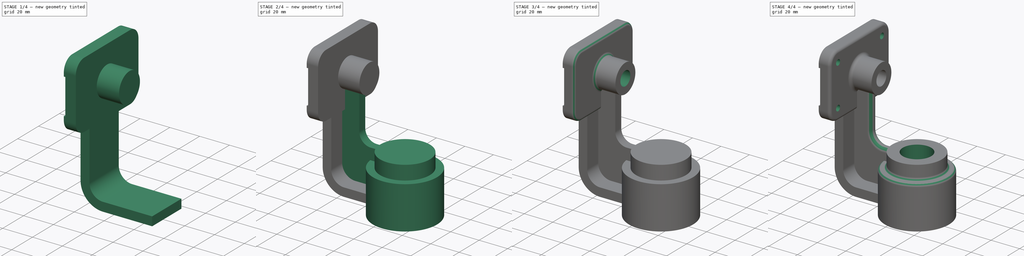
[diagram: build sequence overview — one tinted view per stage of 4, left to right]
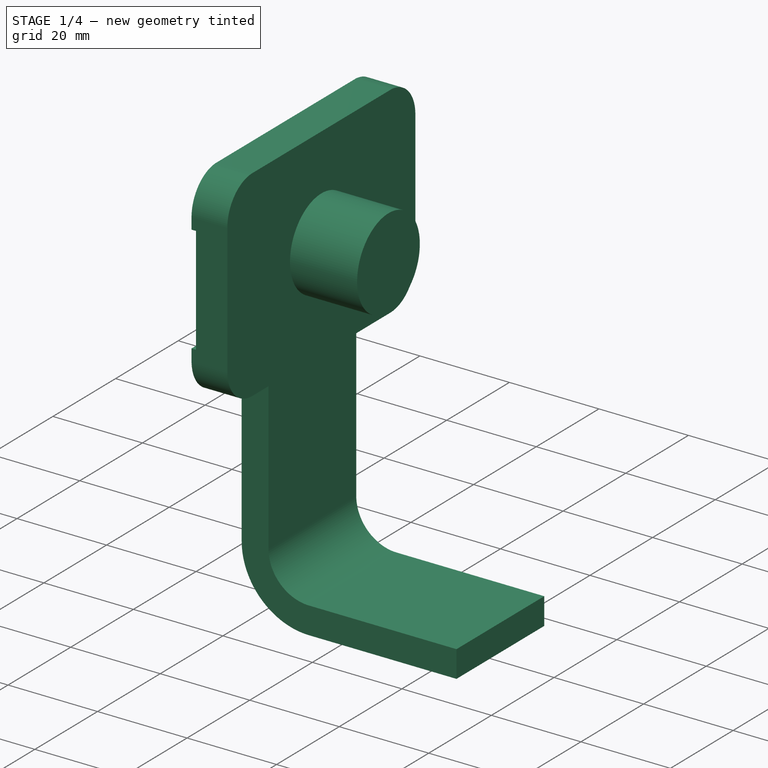
[diagram: stage 1 of 4 — iso view after this stage's code; geometry added in this stage tinted green]
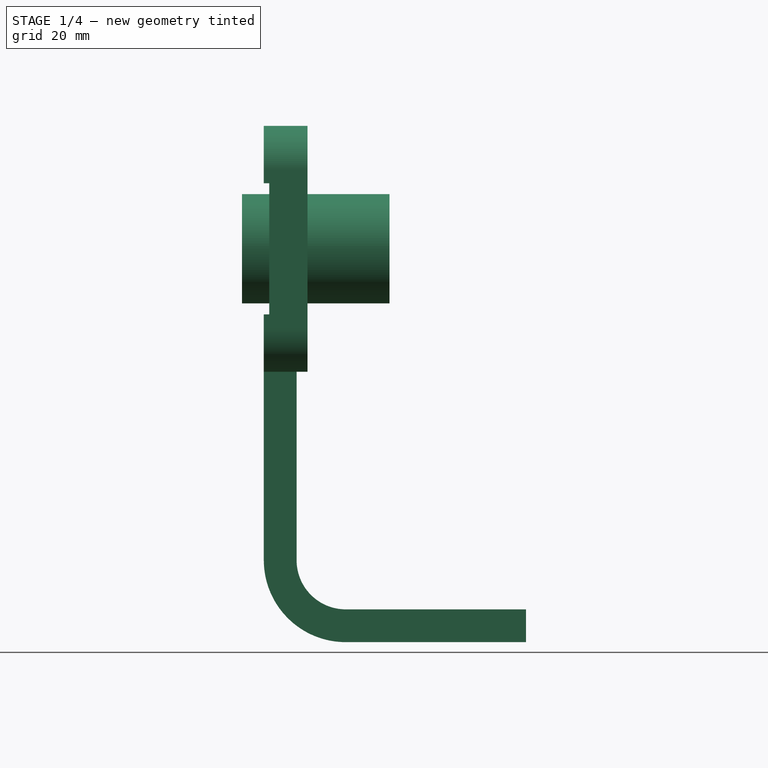
[diagram: stage 1 of 4 — front view after this stage's code; geometry added in this stage tinted green]
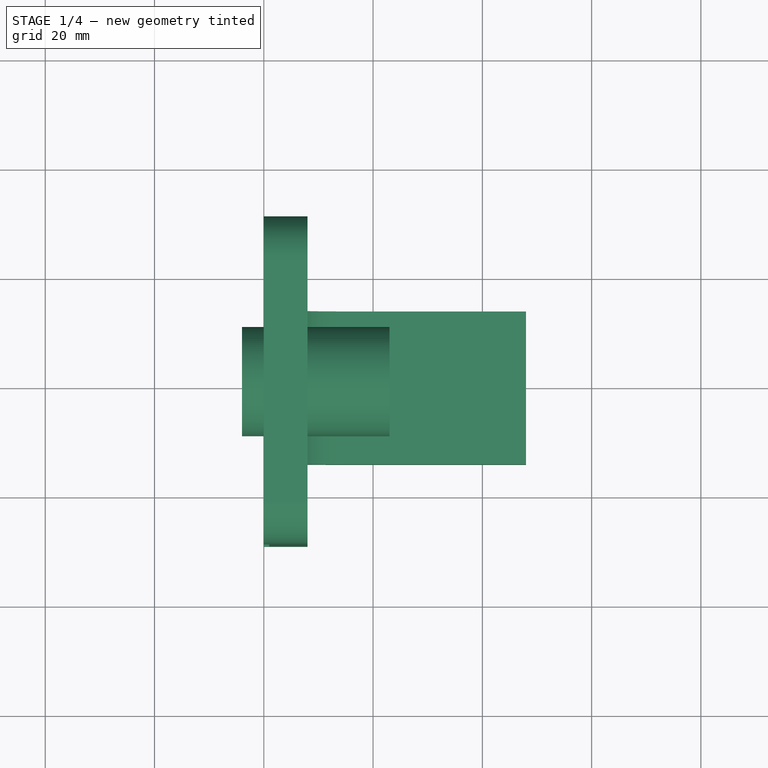
[diagram: stage 1 of 4 — top view after this stage's code; geometry added in this stage tinted green]
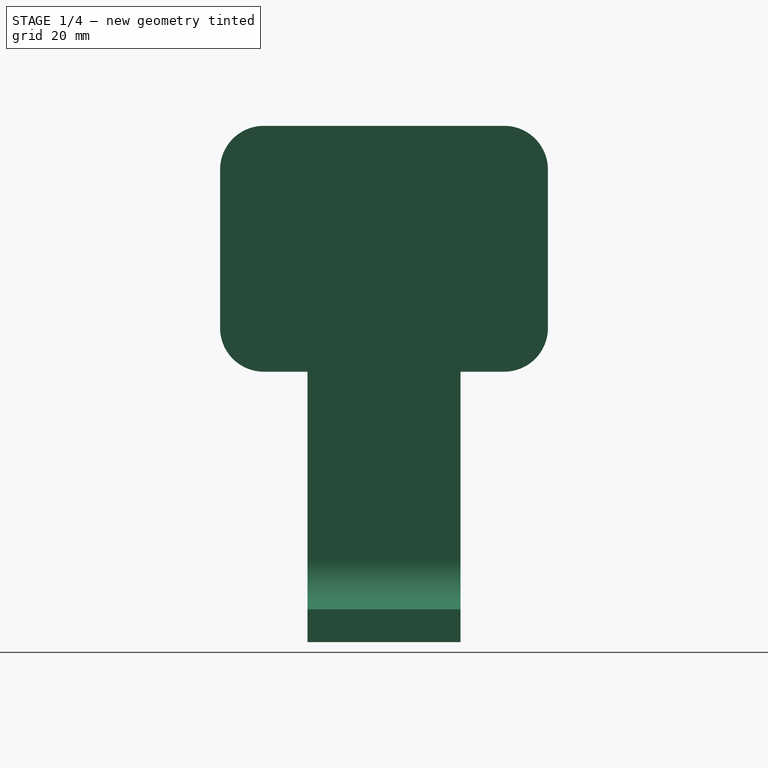
[diagram: stage 1 of 4 — right view after this stage's code; geometry added in this stage tinted green]
FCSTD DOCUMENT  (FreeCAD 0.21R33771 (Git))
Label: ex46
License: All rights reserved
LicenseURL: https://en.wikipedia.org/wiki/All_rights_reserved
objects: Sketcher::SketchObject×9, PartDesign::Fillet×5, PartDesign::Pad×4, PartDesign::Pocket×3, PartDesign::Revolution×1, PartDesign::Groove×1, PartDesign::Body×1
note: 38 computed .brp shape members not serialized (recipe doc carries the construction recipe); baked Part::Feature solids carry a one-line shape summary decoded from their .brp

FEATURE [Sketcher::SketchObject] Sketch
  FullyConstrained = true
  MapMode = 5
  Placement = pos=(0,0,0) rot=(0.57735,0.57735,0.57735;2.0944rad)
  Support = -> [YZ_Plane]
  sketch-geometry (10):
    g0: ArcOfCircle CenterX=-22 CenterY=14.5 CenterZ=0 NormalX=0 NormalY=0 NormalZ=1 AngleXU=0 Radius=8 StartAngle=1.5708 EndAngle=3.14159
    g1: LineSegment StartX=-22 StartY=22.5 StartZ=0 EndX=22 EndY=22.5 EndZ=0
    g2: ArcOfCircle CenterX=22 CenterY=14.5 CenterZ=0 NormalX=0 NormalY=0 NormalZ=1 AngleXU=0 Radius=8 StartAngle=1e-16 EndAngle=1.5708
    g3: LineSegment StartX=30 StartY=14.5 StartZ=0 EndX=30 EndY=-14.5 EndZ=0
    g4: ArcOfCircle CenterX=22 CenterY=-14.5 CenterZ=0 NormalX=0 NormalY=0 NormalZ=1 AngleXU=0 Radius=8 StartAngle=4.71239 EndAngle=6.28319
    g5: LineSegment StartX=22 StartY=-22.5 StartZ=0 EndX=-22 EndY=-22.5 EndZ=0
    g6: ArcOfCircle CenterX=-22 CenterY=-14.5 CenterZ=0 NormalX=0 NormalY=0 NormalZ=1 AngleXU=0 Radius=8 StartAngle=3.14159 EndAngle=4.71239
    g7: LineSegment StartX=-30 StartY=-14.5 StartZ=0 EndX=-30 EndY=14.5 EndZ=0
    g8: GeomPoint X=-30 Y=22.5 Z=0
    g9: GeomPoint X=30 Y=-22.5 Z=0
  constraints (22):
    c: Tangent(g0,g1) = 1.5708
    c: Tangent(g1,g2) = 1.5708
    c: Tangent(g2,g3) = 1.5708
    c: Tangent(g3,g4) = 1.5708
    c: Tangent(g4,g5) = 1.5708
    c: Tangent(g5,g6) = 1.5708
    c: Tangent(g6,g7) = 1.5708
    c: Tangent(g7,g0) = 1.5708
    c: Horizontal(g1)
    c: Horizontal(g5)
    c: Vertical(g3)
    c: Vertical(g7)
    c: Equal(g4,g6)
    c: PointOnObject(g8,g1)
    c: PointOnObject(g8,g7)
    c: PointOnObject(g9,g3)
    c: PointOnObject(g9,g5)
    c: Symmetric(g2,g4,g-1)
    c: Symmetric(g0,g2,g-2)
    c: Radius(g0) = 8
    c: DistanceX(g0,g2) = 60
    c: DistanceY(g4,g1) = 45
FEATURE [PartDesign::Pad] Pad
  Direction = (1,-2e-16,3e-16)
  Length = 8
  Length2 = 10
  Placement = pos=(0,0,0) rot=(1,1,1;2.0944rad)
  Profile = -> Sketch
  ReferenceAxis = -> Sketch [N_Axis]
  Type = 0
FEATURE [Sketcher::SketchObject] Sketch001
  FullyConstrained = false
  MapMode = 5
  Placement = pos=(0,0,0) rot=(0.57735,0.57735,0.57735;2.0944rad)
  Support = -> [YZ_Plane]
  sketch-geometry (4):
    g0: LineSegment StartX=-55.1293 StartY=12 StartZ=0 EndX=55.5698 EndY=12 EndZ=0
    g1: LineSegment StartX=55.5698 StartY=12 StartZ=0 EndX=55.5698 EndY=-12 EndZ=0
    g2: LineSegment StartX=55.5698 StartY=-12 StartZ=0 EndX=-55.1293 EndY=-12 EndZ=0
    g3: LineSegment StartX=-55.1293 StartY=-12 StartZ=0 EndX=-55.1293 EndY=12 EndZ=0
  constraints (9):
    c: Coincident(g0,g1)
    c: Coincident(g1,g2)
    c: Coincident(g2,g3)
    c: Coincident(g3,g0)
    c: Horizontal(g0)
    c: Horizontal(g2)
    c: Vertical(g3)
    c: Symmetric(g0,g1,g-1)
    c: DistanceY(g1,g1) = 24
FEATURE [PartDesign::Pocket] Pocket
  BaseFeature = -> Pad
  Direction = (-1,2e-16,-3e-16)
  Length = 2
  Length2 = 5
  Midplane = true
  Placement = pos=(0,0,0) rot=(1,1,1;2.0944rad)
  Profile = -> Sketch001
  ReferenceAxis = -> Sketch001 [N_Axis]
  Type = 0
FEATURE [Sketcher::SketchObject] Sketch002
  FullyConstrained = true
  MapMode = 5
  Placement = pos=(0,0,0) rot=(0.57735,0.57735,0.57735;2.0944rad)
  Support = -> [YZ_Plane]
  sketch-geometry (1):
    g0: Circle CenterX=0 CenterY=0 CenterZ=0 NormalX=0 NormalY=0 NormalZ=1 AngleXU=0 Radius=10
  constraints (2):
    c: Coincident(g0,g-1)
    c: Radius(g0) = 10
FEATURE [PartDesign::Pad] Pad001
  BaseFeature = -> Pocket
  Direction = (1,-2e-16,3e-16)
  Length = 23
  Length2 = 4
  Placement = pos=(0,0,0) rot=(1,1,1;2.0944rad)
  Profile = -> Sketch002
  ReferenceAxis = -> Sketch002 [N_Axis]
  Type = 4
FEATURE [Sketcher::SketchObject] Sketch003
  ExternalGeometry = -> [Pad001]
  FullyConstrained = true
  MapMode = 5
  Placement = pos=(0,0,0) rot=(1,0,0;1.5708rad)
  Support = -> [XZ_Plane]
  sketch-geometry (8):
    g0: LineSegment StartX=0 StartY=-22.5 StartZ=0 EndX=0 EndY=-57 EndZ=0
    g1: LineSegment StartX=15 StartY=-72 StartZ=0 EndX=48 EndY=-72 EndZ=0
    g2: LineSegment StartX=48 StartY=-72 StartZ=0 EndX=48 EndY=-66 EndZ=0
    g3: LineSegment StartX=48 StartY=-66 StartZ=0 EndX=15 EndY=-66 EndZ=0
    g4: LineSegment StartX=6 StartY=-57 StartZ=0 EndX=6 EndY=-22.5 EndZ=0
    g5: ArcOfCircle CenterX=15 CenterY=-57 CenterZ=0 NormalX=0 NormalY=0 NormalZ=1 AngleXU=0 Radius=9 StartAngle=3.14159 EndAngle=4.71239
    g6: ArcOfCircle CenterX=15 CenterY=-57 CenterZ=0 NormalX=0 NormalY=0 NormalZ=1 AngleXU=0 Radius=15 StartAngle=3.14159 EndAngle=4.71239
    g7: LineSegment StartX=0 StartY=-22.5 StartZ=0 EndX=6 EndY=-22.5 EndZ=0
  constraints (21):
    c: Coincident(g-3,g0)
    c: Horizontal(g1)
    c: Coincident(g1,g2)
    c: Coincident(g2,g3)
    c: Horizontal(g3)
    c: Vertical(g2)
    c: PointOnObject(g4,g-3)
    c: Vertical(g4)
    c: DistanceX(g0,g4) = 6
    c: DistanceY(g2,g2) = 6
    c: Tangent(g4,g5) = 1.5708
    c: Tangent(g3,g5) = 1.5708
    c: Radius(g5) = 9
    c: Tangent(g0,g6) = -1.5708
    c: Tangent(g1,g6) = -1.5708
    c: Radius(g6) = 15
    c: PointOnObject(g0,g-2)
    c: DistanceX(g-4,g2) = 25
    c: DistanceY(g1,g-1) = 72
    c: Coincident(g7,g0)
    c: Coincident(g7,g4)
FEATURE [PartDesign::Pad] Pad002
  BaseFeature = -> Pad001
  Direction = (0,-1,-2e-16)
  Length = 28
  Length2 = 10
  Midplane = true
  Placement = pos=(0,0,0) rot=(1,1,1;2.0944rad)
  Profile = -> Sketch003
  ReferenceAxis = -> Sketch003 [N_Axis]
  Type = 0
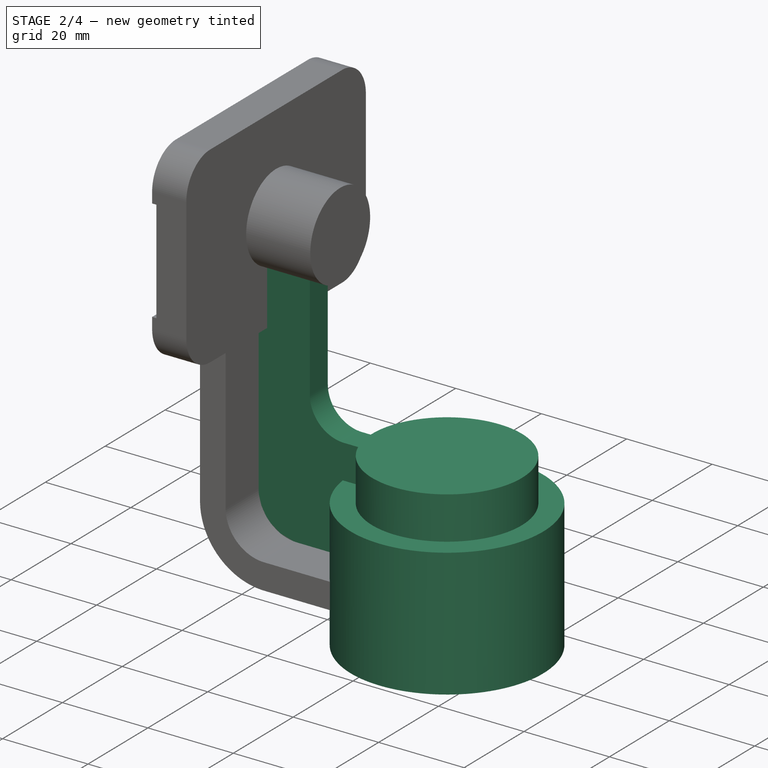
[diagram: stage 2 of 4 — iso view after this stage's code; geometry added in this stage tinted green]
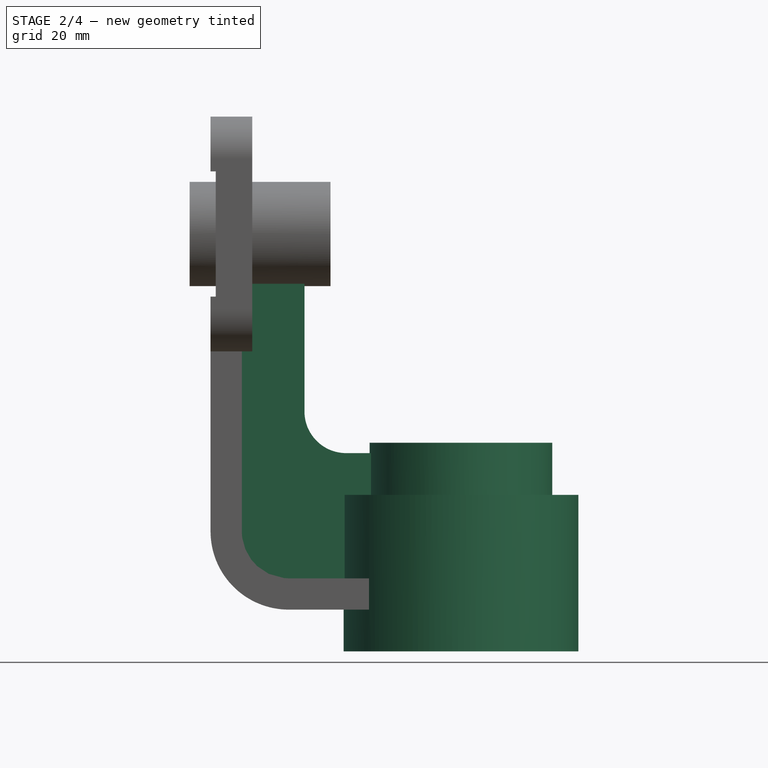
[diagram: stage 2 of 4 — front view after this stage's code; geometry added in this stage tinted green]
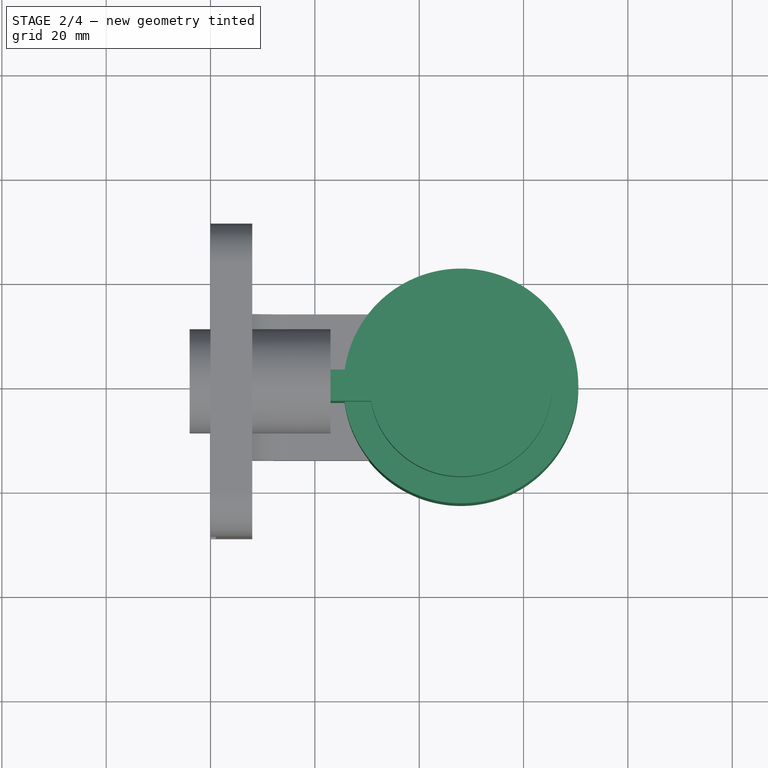
[diagram: stage 2 of 4 — top view after this stage's code; geometry added in this stage tinted green]
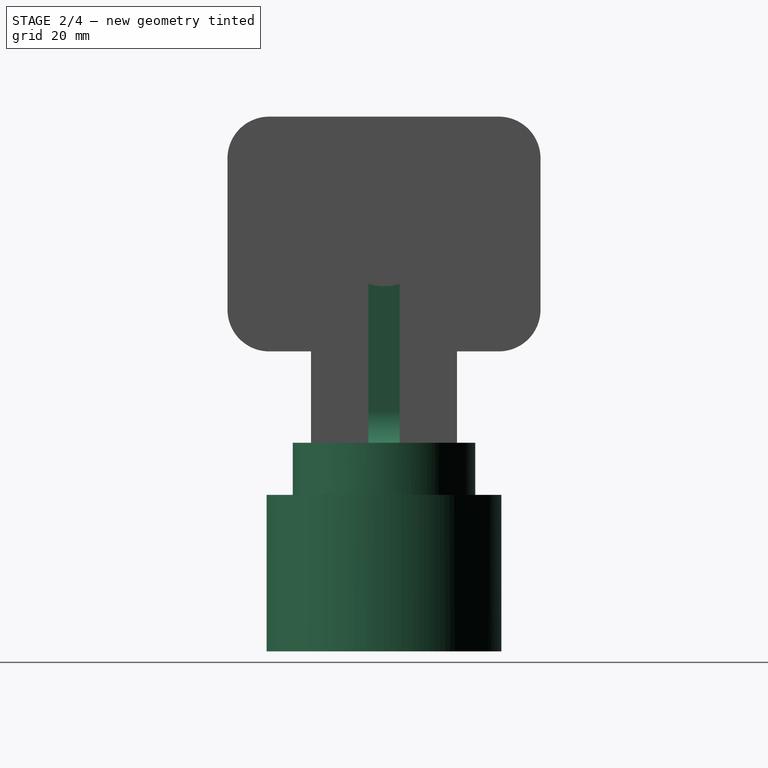
[diagram: stage 2 of 4 — right view after this stage's code; geometry added in this stage tinted green]
FEATURE [Sketcher::SketchObject] Sketch004
  ExternalGeometry = -> [Pad002]
  FullyConstrained = true
  MapMode = 5
  Placement = pos=(0,0,0) rot=(1,0,0;1.5708rad)
  Support = -> [XZ_Plane]
  sketch-geometry (6):
    g0: LineSegment StartX=48 StartY=-80 StartZ=0 EndX=48 EndY=-40 EndZ=0
    g1: LineSegment StartX=48 StartY=-40 StartZ=0 EndX=65.5 EndY=-40 EndZ=0
    g2: LineSegment StartX=65.5 StartY=-40 StartZ=0 EndX=65.5 EndY=-50 EndZ=0
    g3: LineSegment StartX=65.5 StartY=-50 StartZ=0 EndX=70.5 EndY=-50 EndZ=0
    g4: LineSegment StartX=70.5 StartY=-50 StartZ=0 EndX=70.5 EndY=-80 EndZ=0
    g5: LineSegment StartX=70.5 StartY=-80 StartZ=0 EndX=48 EndY=-80 EndZ=0
  constraints (18):
    c: Coincident(g0,g1)
    c: Coincident(g1,g2)
    c: Coincident(g2,g3)
    c: Coincident(g3,g4)
    c: Coincident(g4,g5)
    c: Coincident(g5,g0)
    c: Horizontal(g1)
    c: Horizontal(g3)
    c: Horizontal(g5)
    c: Vertical(g2)
    c: Vertical(g4)
    c: Vertical(g0)
    c: DistanceX(g5,g5) = 22.5
    c: PointOnObject(g-3,g0)
    c: DistanceY(g4,g4) = 30
    c: DistanceY(g4,g1) = 40
    c: DistanceY(g0,g-3) = 8
    c: DistanceX(g1,g1) = 17.5
FEATURE [PartDesign::Revolution] Revolution
  Angle = 360
  Axis = (0,-2e-16,1)
  Base = (48,1.78e-14,-80)
  BaseFeature = -> Pad002
  Placement = pos=(0,0,0) rot=(1,1,1;2.0944rad)
  Profile = -> Sketch004
  ReferenceAxis = -> Sketch004 [Edge1]
  Reversed = true
FEATURE [Sketcher::SketchObject] Sketch005
  ExternalGeometry = -> [Revolution]
  FullyConstrained = false
  MapMode = 5
  Placement = pos=(0,0,0) rot=(1,0,0;1.5708rad)
  Support = -> [XZ_Plane]
  sketch-geometry (10):
    g0: LineSegment StartX=0 StartY=-12 StartZ=0 EndX=0 EndY=-57 EndZ=0
    g1: LineSegment StartX=1 StartY=0 StartZ=0 EndX=18 EndY=0 EndZ=0
    g2: LineSegment StartX=18 StartY=0 StartZ=0 EndX=18 EndY=-42 EndZ=0
    g3: LineSegment StartX=18 StartY=-42 StartZ=0 EndX=48 EndY=-42 EndZ=0
    g4: LineSegment StartX=48 StartY=-42 StartZ=0 EndX=48 EndY=-67 EndZ=0
    g5: LineSegment StartX=48 StartY=-67 StartZ=0 EndX=10 EndY=-67 EndZ=0
    g6: GeomPoint X=48 Y=-40 Z=0
    g7: ArcOfCircle CenterX=10 CenterY=-57 CenterZ=0 NormalX=0 NormalY=0 NormalZ=1 AngleXU=0 Radius=10 StartAngle=3.14159 EndAngle=4.71239
    g8: LineSegment StartX=0 StartY=-12 StartZ=0 EndX=1 EndY=-12 EndZ=0
    g9: LineSegment StartX=1 StartY=-12 StartZ=0 EndX=1 EndY=0 EndZ=0
  constraints (25):
    c: PointOnObject(g1,g-1)
    c: Coincident(g1,g2)
    c: Vertical(g2)
    c: Coincident(g2,g3)
    c: Horizontal(g3)
    c: Coincident(g3,g4)
    c: Vertical(g4)
    c: Coincident(g4,g5)
    c: Horizontal(g5)
    c: DistanceX(g-1,g1) = 18
    c: DistanceY(g3,g-3) = 2
    c: Symmetric(g-3,g-3,g6)
    c: Vertical(g6,g3)
    c: DistanceY(g-4,g4) = 5
    c: Tangent(g0,g7) = -1.5708
    c: Tangent(g5,g7) = 1.5708
    c: Radius(g7) = 10
    c: PointOnObject(g0,g-2)
    c: Coincident(g8,g-5)
    c: Coincident(g8,g-5)
    c: Coincident(g9,g8)
    c: Vertical(g9)
    c: Coincident(g1,g9)
    c: PointOnObject(g0,g-5)
    c: Horizontal(g1)
FEATURE [PartDesign::Pad] Pad003
  BaseFeature = -> Revolution
  Direction = (0,-1,-2e-16)
  Length = 6
  Length2 = 10
  Midplane = true
  Placement = pos=(0,0,0) rot=(1,1,1;2.0944rad)
  Profile = -> Sketch005
  ReferenceAxis = -> Sketch005 [N_Axis]
  Type = 0
FEATURE [PartDesign::Fillet] Fillet
  Base = -> Pad003 [Edge113]
  BaseFeature = -> Pad003
  Placement = pos=(0,0,0) rot=(1,1,1;2.0944rad)
  Radius = 8
  SupportTransform = false
  UseAllEdges = false
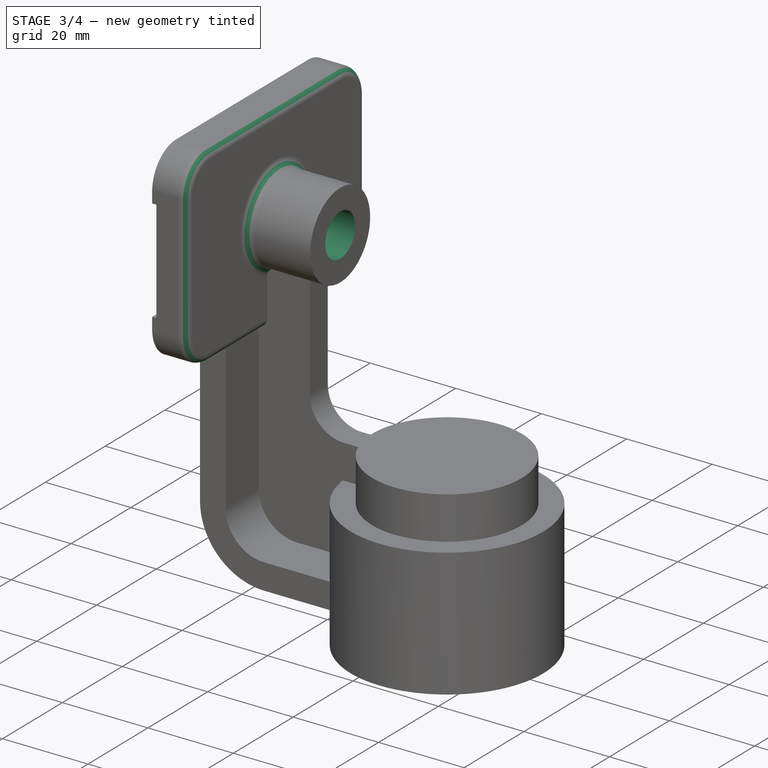
[diagram: stage 3 of 4 — iso view after this stage's code; geometry added in this stage tinted green]
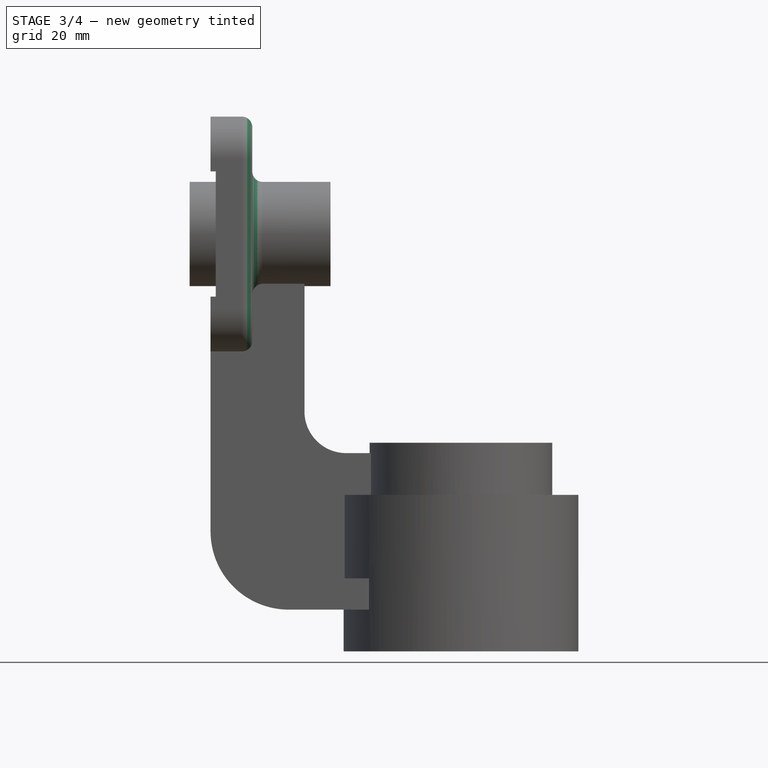
[diagram: stage 3 of 4 — front view after this stage's code; geometry added in this stage tinted green]
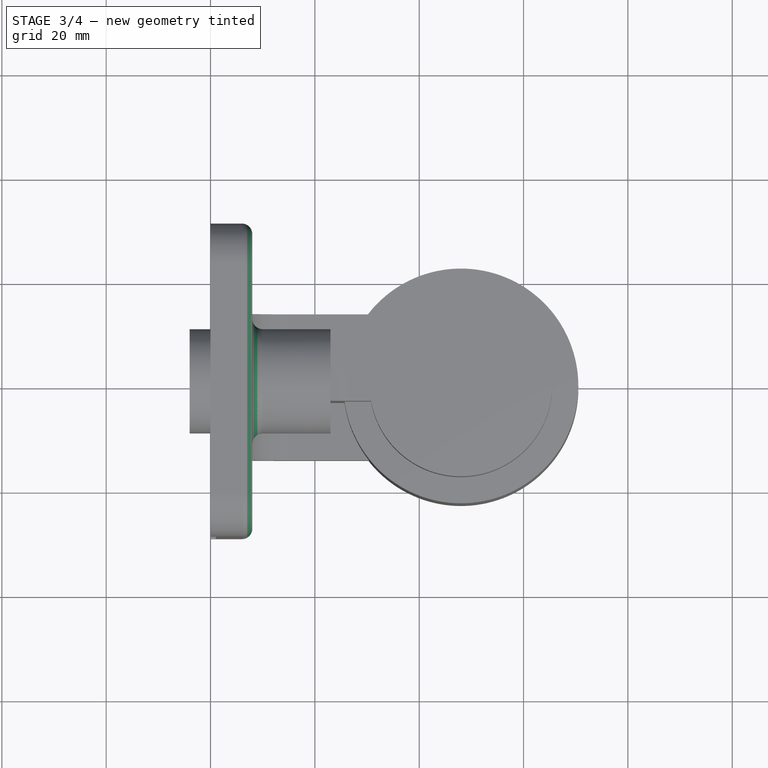
[diagram: stage 3 of 4 — top view after this stage's code; geometry added in this stage tinted green]
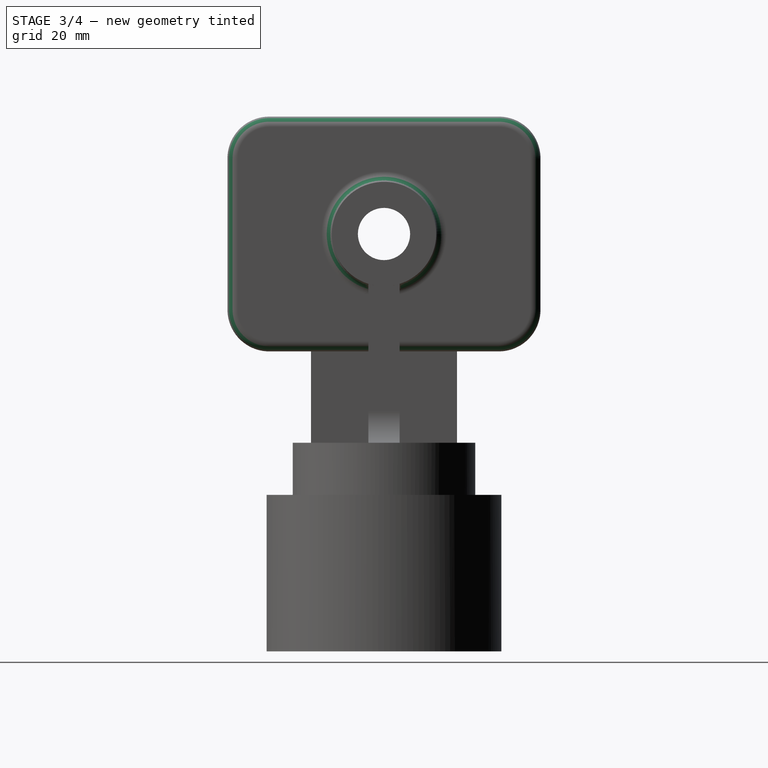
[diagram: stage 3 of 4 — right view after this stage's code; geometry added in this stage tinted green]
FEATURE [Sketcher::SketchObject] Sketch006
  FullyConstrained = true
  MapMode = 5
  Placement = pos=(23,-2.55e-14,1.53e-14) rot=(0.57735,0.57735,0.57735;2.0944rad)
  Support = -> [Fillet]
  sketch-geometry (1):
    g0: Circle CenterX=0 CenterY=0 CenterZ=0 NormalX=0 NormalY=0 NormalZ=1 AngleXU=0 Radius=5
  constraints (2):
    c: Coincident(g0,g-1)
    c: Radius(g0) = 5
FEATURE [PartDesign::Pocket] Pocket001
  BaseFeature = -> Fillet
  Direction = (-1,1.1e-15,-7e-16)
  Length = 5
  Length2 = 5
  Placement = pos=(0,0,0) rot=(1,1,1;2.0944rad)
  Profile = -> Sketch006
  ReferenceAxis = -> Sketch006 [N_Axis]
  Type = 1
FEATURE [PartDesign::Fillet] Fillet001
  Base = -> Pocket001 [Edge30]
  BaseFeature = -> Pocket001
  Placement = pos=(0,0,0) rot=(1,1,1;2.0944rad)
  Radius = 2
  SupportTransform = false
  UseAllEdges = false
FEATURE [PartDesign::Fillet] Fillet002
  Base = -> Fillet001 [Edge32]
  BaseFeature = -> Fillet001
  Placement = pos=(0,0,0) rot=(1,1,1;2.0944rad)
  Radius = 2
  SupportTransform = false
  UseAllEdges = false
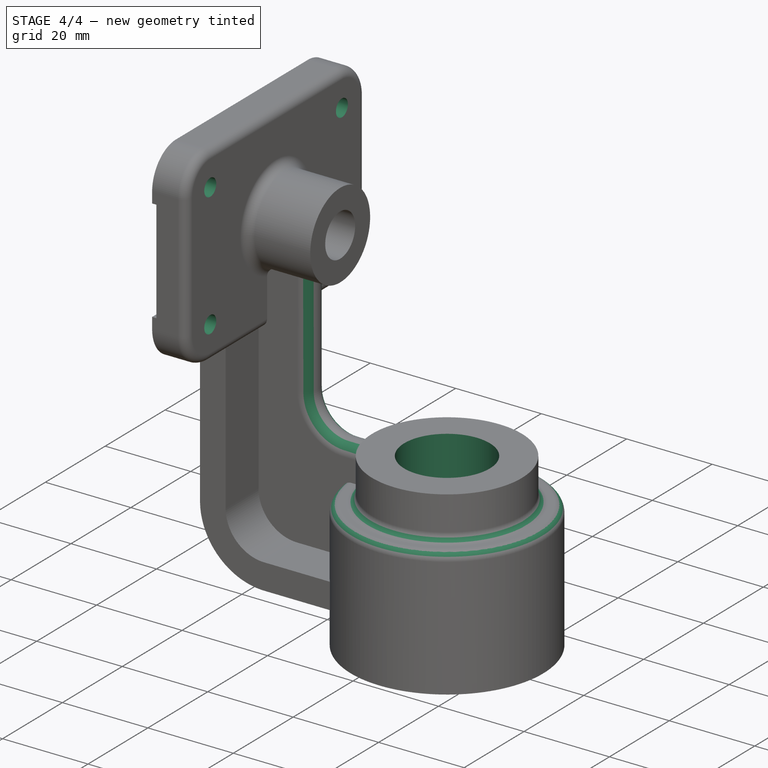
[diagram: stage 4 of 4 — iso view after this stage's code; geometry added in this stage tinted green]
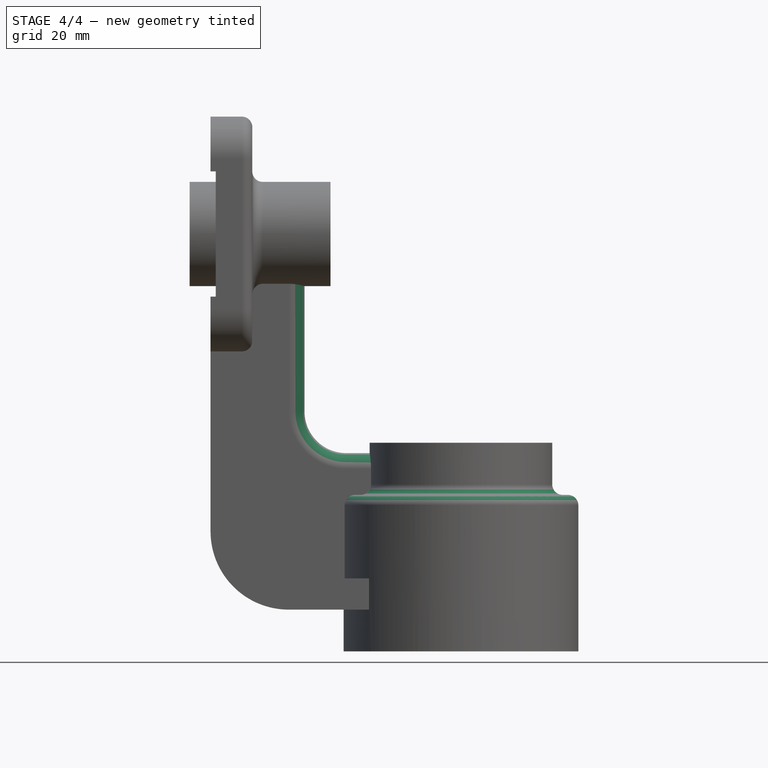
[diagram: stage 4 of 4 — front view after this stage's code; geometry added in this stage tinted green]
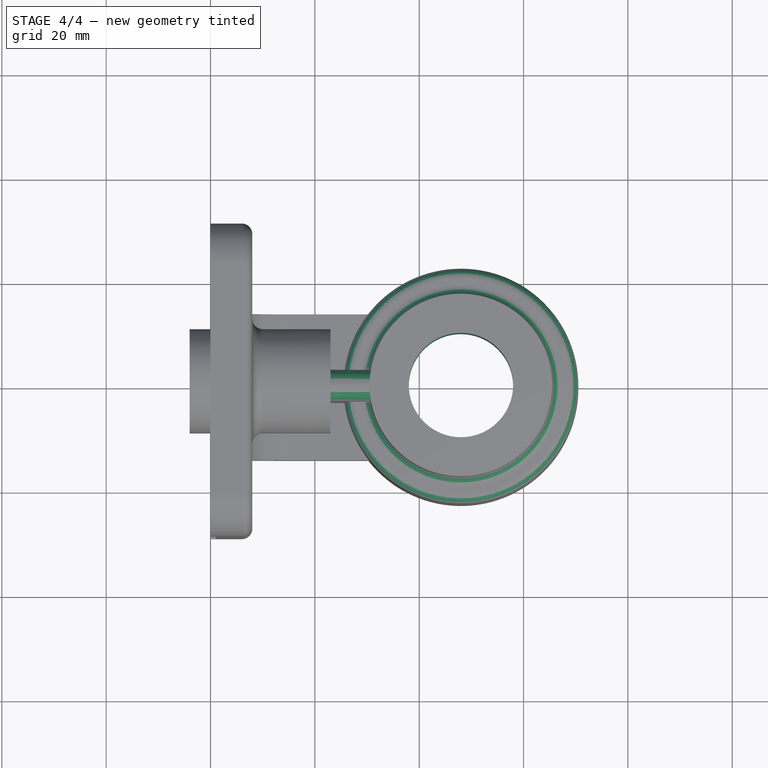
[diagram: stage 4 of 4 — top view after this stage's code; geometry added in this stage tinted green]
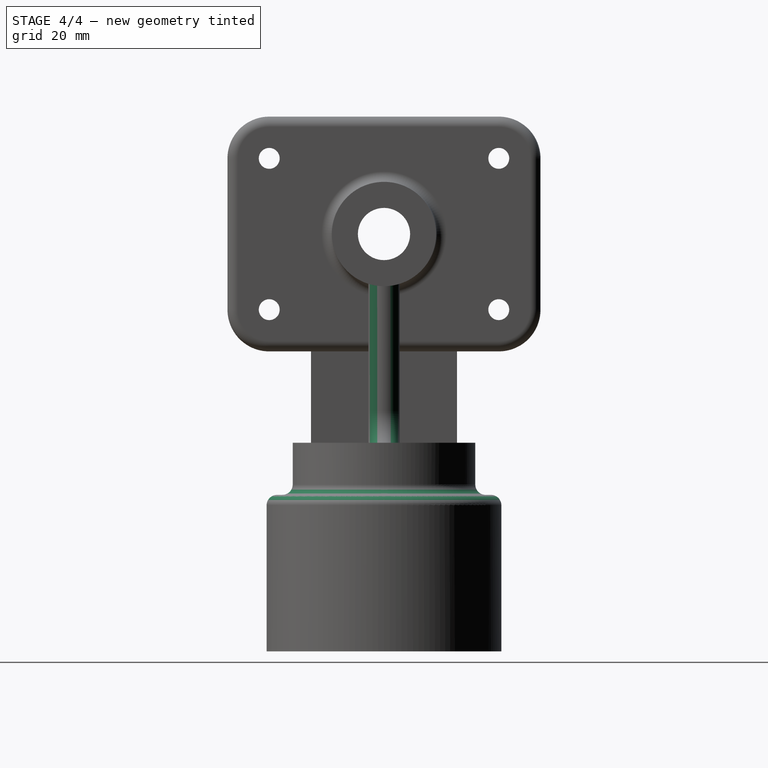
[diagram: stage 4 of 4 — right view after this stage's code; geometry added in this stage tinted green]
FEATURE [Sketcher::SketchObject] Sketch007
  ExternalGeometry = -> [Fillet002]
  FullyConstrained = true
  MapMode = 5
  Placement = pos=(0,0,0) rot=(1,0,0;1.5708rad)
  Support = -> [XZ_Plane]
  sketch-geometry (8):
    g0: LineSegment StartX=48 StartY=-40 StartZ=0 EndX=58 EndY=-40 EndZ=0
    g1: LineSegment StartX=58 StartY=-40 StartZ=0 EndX=58 EndY=-55 EndZ=0
    g2: LineSegment StartX=58 StartY=-55 StartZ=0 EndX=65 EndY=-55 EndZ=0
    g3: LineSegment StartX=65 StartY=-55 StartZ=0 EndX=65 EndY=-58 EndZ=0
    g4: LineSegment StartX=65 StartY=-58 StartZ=0 EndX=63 EndY=-58 EndZ=0
    g5: LineSegment StartX=63 StartY=-58 StartZ=0 EndX=63 EndY=-80 EndZ=0
    g6: LineSegment StartX=63 StartY=-80 StartZ=0 EndX=48 EndY=-80 EndZ=0
    g7: LineSegment StartX=48 StartY=-80 StartZ=0 EndX=48 EndY=-40 EndZ=0
  constraints (23):
    c: PointOnObject(g0,g-3)
    c: Coincident(g0,g1)
    c: Coincident(g1,g2)
    c: Vertical(g1)
    c: Symmetric(g-3,g-3,g0)
    c: Coincident(g2,g3)
    c: Vertical(g3)
    c: Coincident(g3,g4)
    c: Horizontal(g4)
    c: Coincident(g4,g5)
    c: PointOnObject(g5,g-4)
    c: Vertical(g5)
    c: Coincident(g5,g6)
    c: PointOnObject(g6,g-4)
    c: Coincident(g6,g7)
    c: Coincident(g7,g0)
    c: Vertical(g7)
    c: DistanceX(g0,g0) = 10
    c: Horizontal(g2)
    c: DistanceY(g3,g3) = 3
    c: DistanceX(g4,g4) = 2
    c: DistanceX(g6,g6) = 15
    c: DistanceY(g5,g2) = 25
FEATURE [PartDesign::Groove] Groove
  Angle = 360
  Axis = (0,-2e-16,1)
  Base = (48,1.78e-14,-80)
  BaseFeature = -> Fillet002
  Placement = pos=(0,0,0) rot=(1,1,1;2.0944rad)
  Profile = -> Sketch007
  ReferenceAxis = -> Sketch007 [Edge8]
FEATURE [PartDesign::Fillet] Fillet003
  Base = -> Groove [Edge59,Edge52]
  BaseFeature = -> Groove
  Placement = pos=(0,0,0) rot=(1,1,1;2.0944rad)
  Radius = 2
  SupportTransform = false
  UseAllEdges = false
FEATURE [PartDesign::Fillet] Fillet004
  Base = -> Fillet003 [Edge66,Edge14]
  BaseFeature = -> Fillet003
  Placement = pos=(0,0,0) rot=(1,1,1;2.0944rad)
  Radius = 2.99
  SupportTransform = false
  UseAllEdges = false
FEATURE [Sketcher::SketchObject] Sketch008
  ExternalGeometry = -> [Fillet004]
  FullyConstrained = true
  MapMode = 5
  Placement = pos=(8,-1.6e-14,8.9e-15) rot=(0.57735,0.57735,0.57735;2.0944rad)
  Support = -> [Fillet004]
  sketch-geometry (4):
    g0: Circle CenterX=-22 CenterY=14.5 CenterZ=0 NormalX=0 NormalY=0 NormalZ=1 AngleXU=0 Radius=2
    g1: Circle CenterX=22 CenterY=14.5 CenterZ=0 NormalX=0 NormalY=0 NormalZ=1 AngleXU=0 Radius=2
    g2: Circle CenterX=22 CenterY=-14.5 CenterZ=0 NormalX=0 NormalY=0 NormalZ=1 AngleXU=0 Radius=2
    g3: Circle CenterX=-22 CenterY=-14.5 CenterZ=0 NormalX=0 NormalY=0 NormalZ=1 AngleXU=0 Radius=2
  constraints (8):
    c: Coincident(g0,g-4)
    c: Coincident(g1,g-3)
    c: Coincident(g2,g-6)
    c: Coincident(g3,g-5)
    c: Equal(g3,g0)
    c: Equal(g0,g1)
    c: Equal(g1,g2)
    c: Radius(g0) = 2
FEATURE [PartDesign::Pocket] Pocket002
  BaseFeature = -> Fillet004
  Direction = (-1,2e-15,-1.1e-15)
  Length = 5
  Length2 = 5
  Placement = pos=(0,0,0) rot=(1,1,1;2.0944rad)
  Profile = -> Sketch008
  ReferenceAxis = -> Sketch008 [N_Axis]
  Type = 1
FEATURE [PartDesign::Body] Body
  Group = -> [Sketch,Pad,Sketch001,Pocket,Sketch002,Pad001,Sketch003,Pad002,Sketch004,Revolution,Sketch005,Pad003,Fillet,Sketch006,Pocket001,Fillet001,Fillet002,Sketch007,Groove,Fillet003,Fillet004,Sketch008,Pocket002]
  Origin = -> Origin
  Tip = -> Pocket002
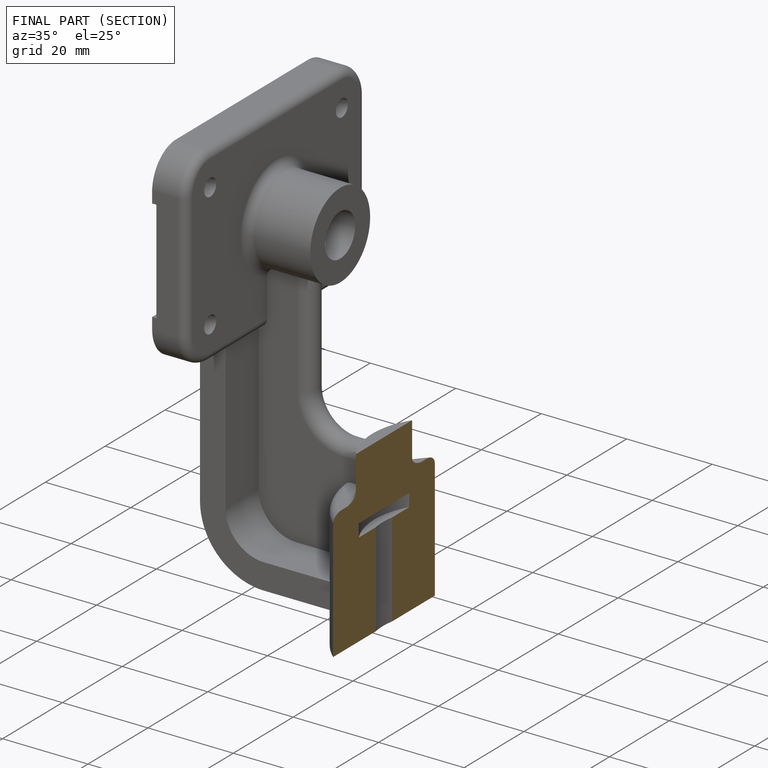
[diagram: finished part — half-section view (interior)]
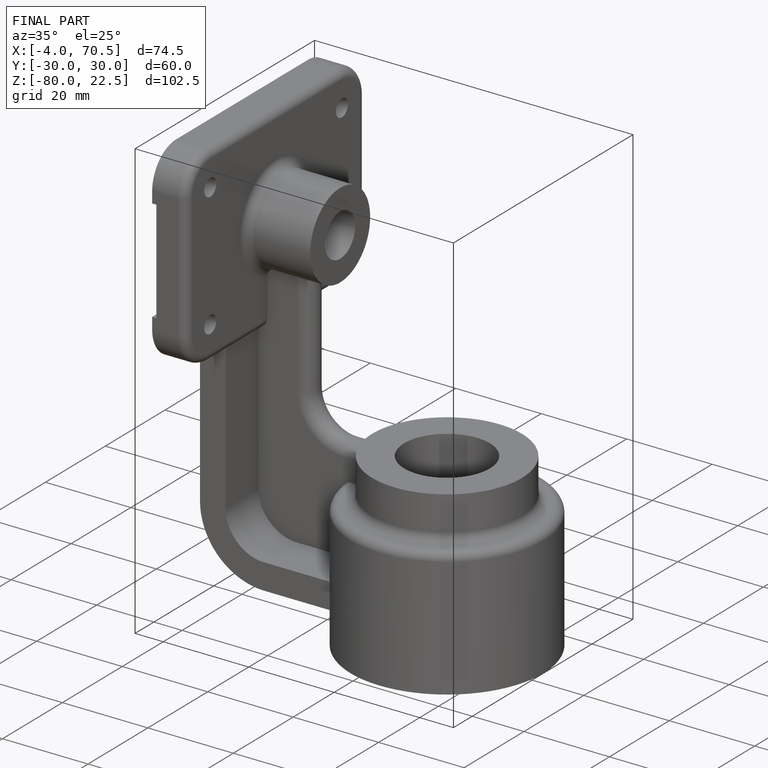
[diagram: finished part — iso view with bounding-box wireframe]
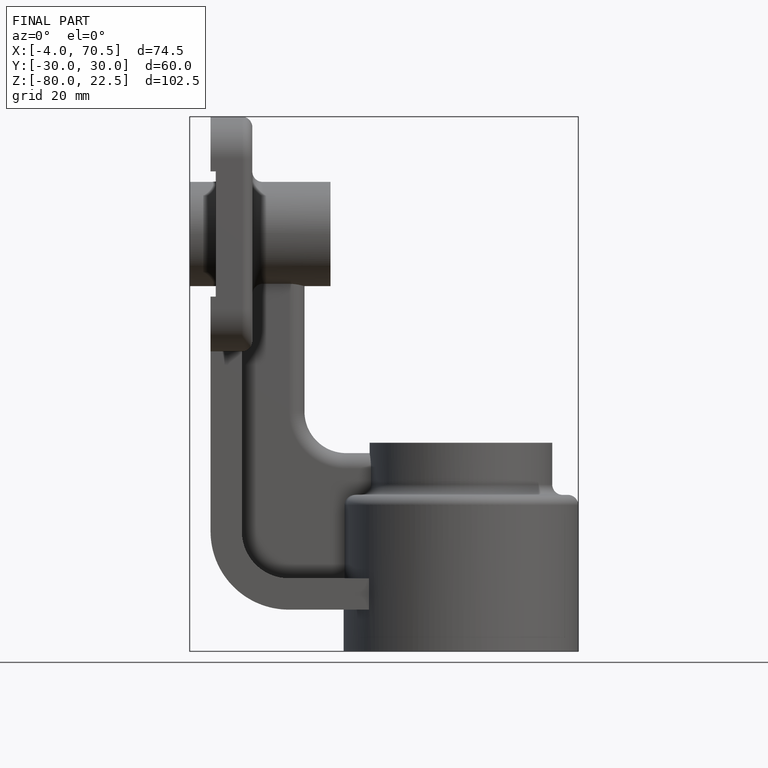
[diagram: finished part — front view with bounding-box wireframe]
